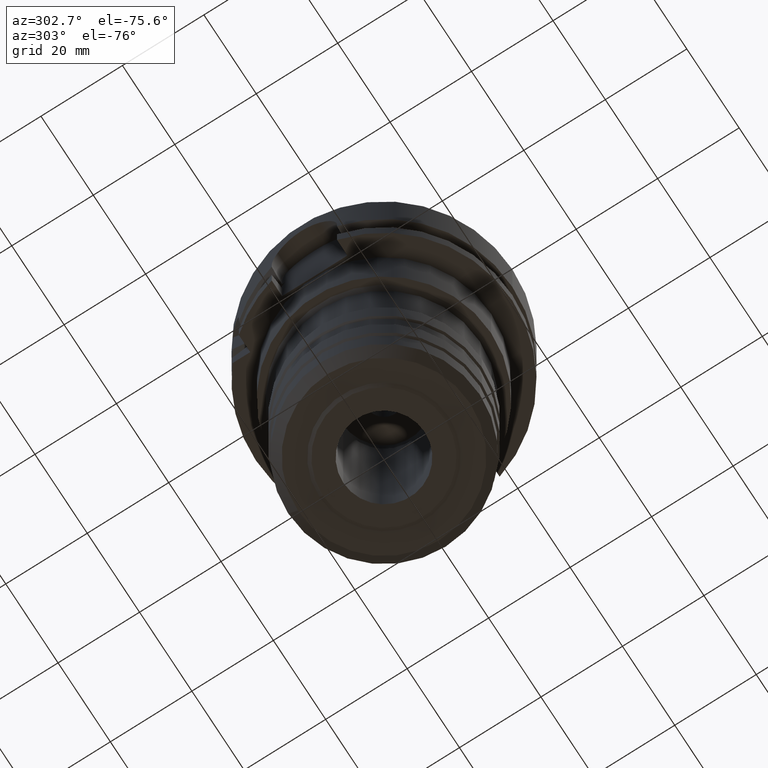
[diagram: clean part render]
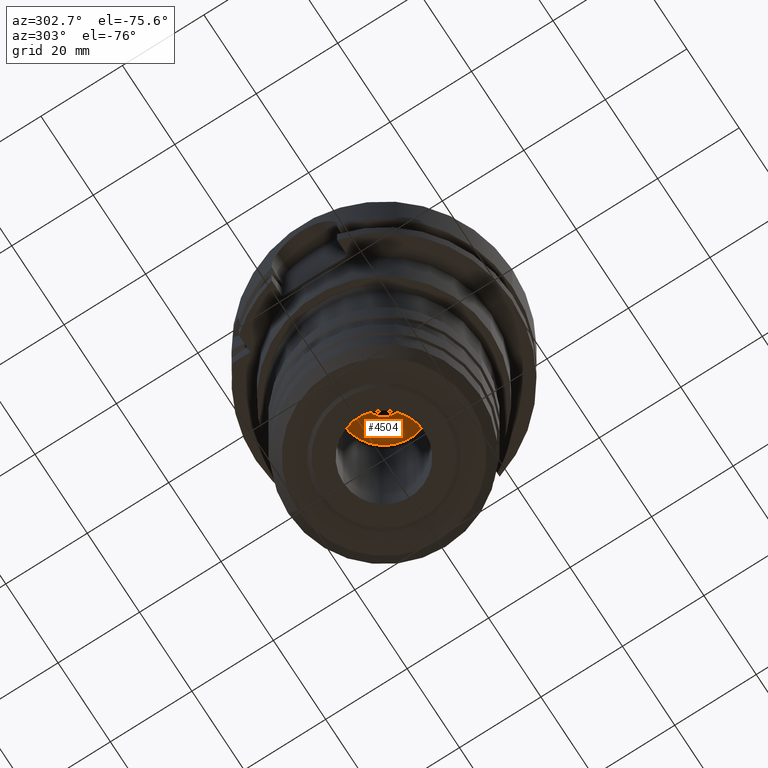
[diagram: same view with one face highlighted and labeled with its STEP entity id]
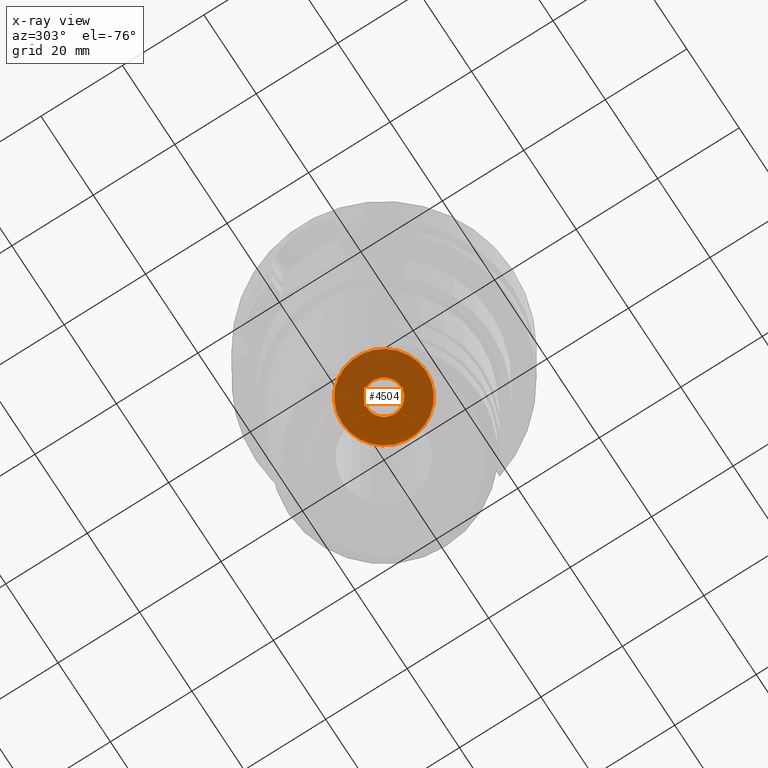
[diagram: x-ray of the same camera — body ghosted, the highlighted face saturated]
A machine part, auxiliary view. The second image highlights one B-rep face of the part: STEP entity #4504.
The next image is the same camera in x-ray: the body ghosted, the highlighted face saturated — about 73% of this face is hidden behind the body in this view.
In plain terms, the highlighted planar face has unit normal (0, 0, -1).
Its self-contained STEP definition (entity closure, byte-faithful):
#2130=CARTESIAN_POINT('',(0.E0,1.691237229622E-14,-4.E1));
#2131=DIRECTION('',(0.E0,0.E0,1.E0));
#2132=DIRECTION('',(0.E0,-1.E0,0.E0));
#2133=AXIS2_PLACEMENT_3D('',#2130,#2131,#2132);
#2138=CARTESIAN_POINT('',(0.E0,1.691237229622E-14,-4.E1));
#2139=DIRECTION('',(0.E0,0.E0,1.E0));
#2140=DIRECTION('',(0.E0,1.E0,0.E0));
#2141=AXIS2_PLACEMENT_3D('',#2138,#2139,#2140);
#2146=CARTESIAN_POINT('',(0.E0,1.691237229622E-14,-4.E1));
#2147=DIRECTION('',(0.E0,0.E0,-1.E0));
#2148=DIRECTION('',(0.E0,-1.E0,0.E0));
#2149=AXIS2_PLACEMENT_3D('',#2146,#2147,#2148);
#2154=CARTESIAN_POINT('',(0.E0,1.691237229622E-14,-4.E1));
#2155=DIRECTION('',(0.E0,0.E0,-1.E0));
#2156=DIRECTION('',(0.E0,1.E0,0.E0));
#2157=AXIS2_PLACEMENT_3D('',#2154,#2155,#2156);
#2805=CARTESIAN_POINT('',(0.E0,1.03E1,-4.E1));
#2806=VERTEX_POINT('',#2805);
#2807=CARTESIAN_POINT('',(0.E0,-1.03E1,-4.E1));
#2808=VERTEX_POINT('',#2807);
#2809=CARTESIAN_POINT('',(0.E0,-4.2E0,-4.E1));
#2810=CARTESIAN_POINT('',(0.E0,4.2E0,-4.E1));
#2811=VERTEX_POINT('',#2809);
#2812=VERTEX_POINT('',#2810);
#4489=CARTESIAN_POINT('',(0.E0,0.E0,-4.E1));
#4490=DIRECTION('',(0.E0,0.E0,-1.E0));
#4491=DIRECTION('',(0.E0,-1.E0,0.E0));
#4492=AXIS2_PLACEMENT_3D('',#4489,#4490,#4491);
#4493=PLANE('',#4492);
#4494=ORIENTED_EDGE('',*,*,#4482,.T.);
#4495=ORIENTED_EDGE('',*,*,#4471,.T.);
#4496=EDGE_LOOP('',(#4494,#4495));
#4497=FACE_OUTER_BOUND('',#4496,.F.);
#4499=ORIENTED_EDGE('',*,*,#4498,.T.);
#4501=ORIENTED_EDGE('',*,*,#4500,.T.);
#4502=EDGE_LOOP('',(#4499,#4501));
#4503=FACE_BOUND('',#4502,.F.);
#2134=CIRCLE('',#2133,1.03E1);
#2142=CIRCLE('',#2141,1.03E1);
#2150=CIRCLE('',#2149,4.2E0);
#2158=CIRCLE('',#2157,4.2E0);
#4471=EDGE_CURVE('',#2806,#2808,#2142,.T.);
#4482=EDGE_CURVE('',#2808,#2806,#2134,.T.);
#4498=EDGE_CURVE('',#2811,#2812,#2150,.T.);
#4500=EDGE_CURVE('',#2812,#2811,#2158,.T.);
#4504=ADVANCED_FACE('',(#4497,#4503),#4493,.T.);